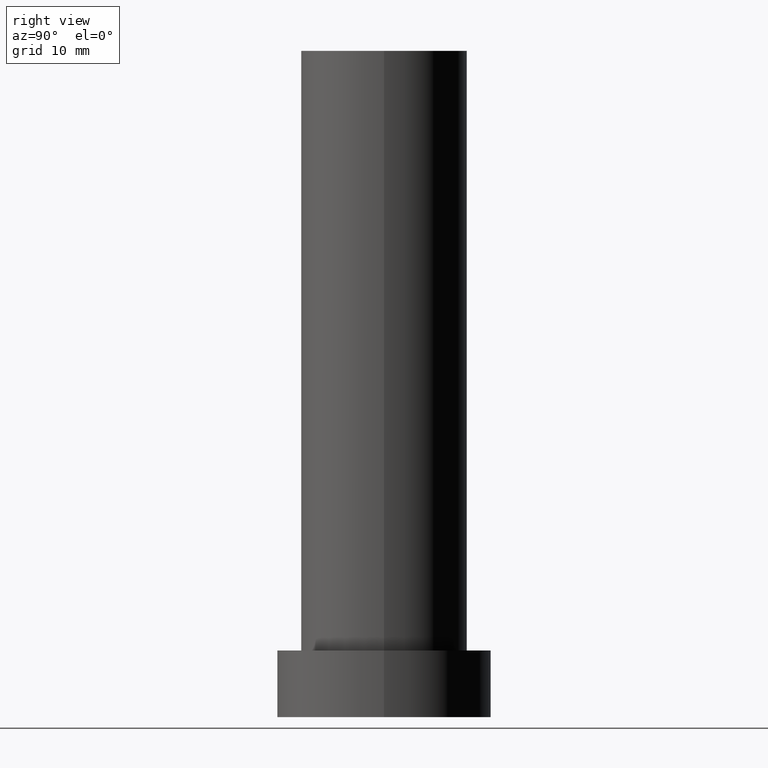
[diagram: clean part render]
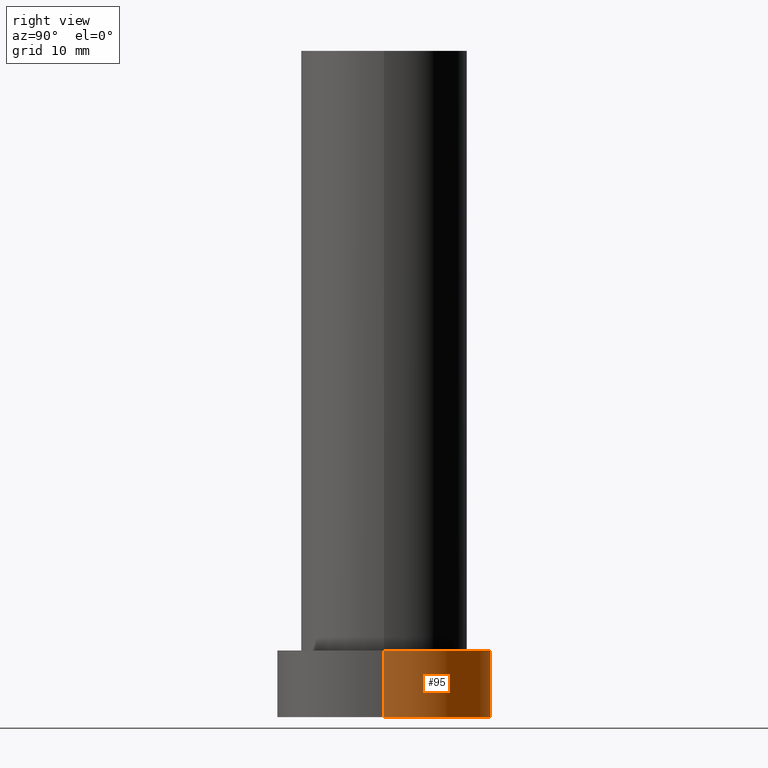
[diagram: same view with one face highlighted and labeled with its STEP entity id]
A machine part, right view. The second image highlights one B-rep face of the part: STEP entity #95.
In plain terms, the highlighted cylindrical surface (partial cylindrical patch) has radius 16 mm, axis along (-0, -0, -1).
Its self-contained STEP definition (entity closure, byte-faithful):
#8 = DIRECTION ( 'NONE',  ( 0.000000000000000000, 0.000000000000000000, 1.000000000000000000 ) ) ;
#9 = CARTESIAN_POINT ( 'NONE',  ( 0.000000000000000000, 0.000000000000000000, 10.00000000000000000 ) ) ;
#11 = FACE_OUTER_BOUND ( 'NONE', #241, .T. ) ;
#21 = VERTEX_POINT ( 'NONE', #212 ) ;
#28 = CARTESIAN_POINT ( 'NONE',  ( 0.000000000000000000, 0.000000000000000000, 0.000000000000000000 ) ) ;
#31 = AXIS2_PLACEMENT_3D ( 'NONE', #28, #8, #65 ) ;
#36 = CIRCLE ( 'NONE', #151, 16.00000000000000000 ) ;
#52 = CARTESIAN_POINT ( 'NONE',  ( 0.000000000000000000, 0.000000000000000000, 10.00000000000000000 ) ) ;
#53 = CARTESIAN_POINT ( 'NONE',  ( -16.00000000000000000, 0.000000000000000000, 10.00000000000000000 ) ) ;
#60 = ORIENTED_EDGE ( 'NONE', *, *, #147, .F. ) ;
#64 = LINE ( 'NONE', #125, #200 ) ;
#65 = DIRECTION ( 'NONE',  ( 1.000000000000000000, 0.000000000000000000, 0.000000000000000000 ) ) ;
#67 = DIRECTION ( 'NONE',  ( -0.000000000000000000, -0.000000000000000000, -1.000000000000000000 ) ) ;
#89 = DIRECTION ( 'NONE',  ( 1.000000000000000000, 0.000000000000000000, 0.000000000000000000 ) ) ;
#95 = ADVANCED_FACE ( 'NONE', ( #11 ), #170, .T. ) ;
#108 = AXIS2_PLACEMENT_3D ( 'NONE', #52, #67, #248 ) ;
#125 = CARTESIAN_POINT ( 'NONE',  ( 16.00000000000000000, 1.959434878635765131E-15, 10.00000000000000000 ) ) ;
#137 = EDGE_CURVE ( 'NONE', #185, #164, #36, .T. ) ;
#143 = CIRCLE ( 'NONE', #31, 16.00000000000000000 ) ;
#144 = ORIENTED_EDGE ( 'NONE', *, *, #154, .T. ) ;
#145 = CARTESIAN_POINT ( 'NONE',  ( -16.00000000000000000, 0.000000000000000000, 10.00000000000000000 ) ) ;
#147 = EDGE_CURVE ( 'NONE', #164, #224, #203, .T. ) ;
#150 = DIRECTION ( 'NONE',  ( 0.000000000000000000, 0.000000000000000000, 1.000000000000000000 ) ) ;
#151 = AXIS2_PLACEMENT_3D ( 'NONE', #9, #150, #89 ) ;
#154 = EDGE_CURVE ( 'NONE', #185, #21, #64, .T. ) ;
#164 = VERTEX_POINT ( 'NONE', #145 ) ;
#167 = DIRECTION ( 'NONE',  ( -0.000000000000000000, -0.000000000000000000, -1.000000000000000000 ) ) ;
#170 = CYLINDRICAL_SURFACE ( 'NONE', #108, 16.00000000000000000 ) ;
#181 = EDGE_CURVE ( 'NONE', #21, #224, #143, .T. ) ;
#185 = VERTEX_POINT ( 'NONE', #205 ) ;
#200 = VECTOR ( 'NONE', #250, 1000.000000000000000 ) ;
#202 = ORIENTED_EDGE ( 'NONE', *, *, #181, .T. ) ;
#203 = LINE ( 'NONE', #53, #253 ) ;
#205 = CARTESIAN_POINT ( 'NONE',  ( 16.00000000000000000, 1.959434878635765131E-15, 10.00000000000000000 ) ) ;
#208 = CARTESIAN_POINT ( 'NONE',  ( -16.00000000000000000, 0.000000000000000000, 0.000000000000000000 ) ) ;
#212 = CARTESIAN_POINT ( 'NONE',  ( 16.00000000000000000, 1.959434878635765131E-15, 0.000000000000000000 ) ) ;
#224 = VERTEX_POINT ( 'NONE', #208 ) ;
#241 = EDGE_LOOP ( 'NONE', ( #246, #144, #202, #60 ) ) ;
#246 = ORIENTED_EDGE ( 'NONE', *, *, #137, .F. ) ;
#248 = DIRECTION ( 'NONE',  ( -1.000000000000000000, 0.000000000000000000, 0.000000000000000000 ) ) ;
#250 = DIRECTION ( 'NONE',  ( -0.000000000000000000, -0.000000000000000000, -1.000000000000000000 ) ) ;
#253 = VECTOR ( 'NONE', #167, 1000.000000000000000 ) ;